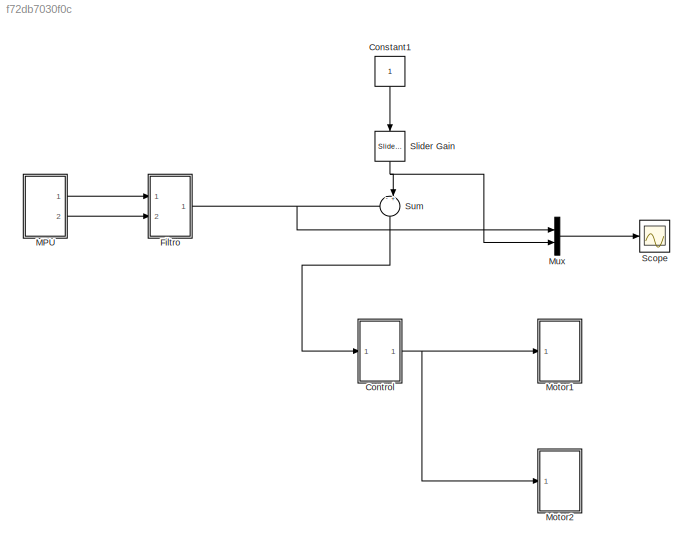
MODEL slx_f72db7030f0c
KIND model
CONFIG AbsTol = auto
CONFIG FixedStep = 0.03
CONFIG MaxStep = auto
CONFIG MinStep = auto
CONFIG RelTol = 1e-3
CONFIG SampleTimeConstraint = Unconstrained
CONFIG Solver = FixedStepDiscrete
CONFIG SolverMode = Auto
CONFIG SolverName = FixedStepDiscrete
CONFIG StartTime = 0.0
CONFIG StopTime = inf
BLOCK [Constant] Constant1
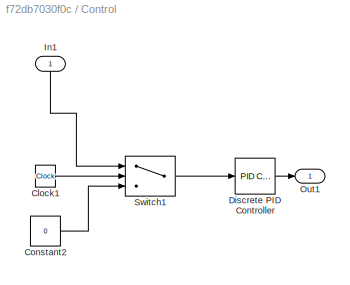
BLOCK [SubSystem] Control
  Ports = [1, 1]
  RequestExecContextInheritance = off
  Variant = off
BLOCK [Clock] Control/Clock1
BLOCK [Constant] Control/Constant2
  Value = 0
BLOCK [Reference] Control/Discrete PID Controller  REF=simulink/Continuous/PID Controller
  Ports = [1, 1]
  SourceBlock = simulink/Continuous/PID Controller
  SourceType = PID 1dof
BLOCK [Inport] Control/In1
  IconDisplay = Port number
BLOCK [Outport] Control/Out1
  IconDisplay = Port number
BLOCK [Switch] Control/Switch1
  Criteria = u2 > Threshold
  InputSameDT = off
  SaturateOnIntegerOverflow = off
  Threshold = 3
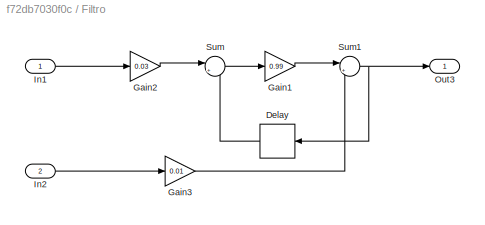
BLOCK [SubSystem] Filtro 
  Ports = [2, 1]
  RequestExecContextInheritance = off
  Variant = off
BLOCK [Delay] Filtro /Delay
  DelayLength = 1
  InitialCondition = 0
  InputPortMap = u0
  Ports = [1, 1]
BLOCK [Gain] Filtro /Gain1
  Gain = 0.99
  OutDataTypeStr = Inherit: Inherit via internal rule
  ParamDataTypeStr = Inherit: Inherit via internal rule
  SaturateOnIntegerOverflow = off
BLOCK [Gain] Filtro /Gain2
  Gain = 0.03
  OutDataTypeStr = Inherit: Inherit via internal rule
  ParamDataTypeStr = Inherit: Inherit via internal rule
  SaturateOnIntegerOverflow = off
BLOCK [Gain] Filtro /Gain3
  Gain = 0.01
  OutDataTypeStr = Inherit: Inherit via internal rule
  ParamDataTypeStr = Inherit: Inherit via internal rule
  SaturateOnIntegerOverflow = off
BLOCK [Inport] Filtro /In1
  IconDisplay = Port number
BLOCK [Inport] Filtro /In2
  IconDisplay = Port number
  Port = 2
BLOCK [Outport] Filtro /Out3
  IconDisplay = Port number
BLOCK [Sum] Filtro /Sum
  IconShape = round
  InputSameDT = off
  Inputs = |++
  OutDataTypeStr = Inherit: Inherit via internal rule
  Ports = [2, 1]
  SaturateOnIntegerOverflow = off
BLOCK [Sum] Filtro /Sum1
  IconShape = round
  InputSameDT = off
  Inputs = |++
  OutDataTypeStr = Inherit: Inherit via internal rule
  Ports = [2, 1]
  SaturateOnIntegerOverflow = off
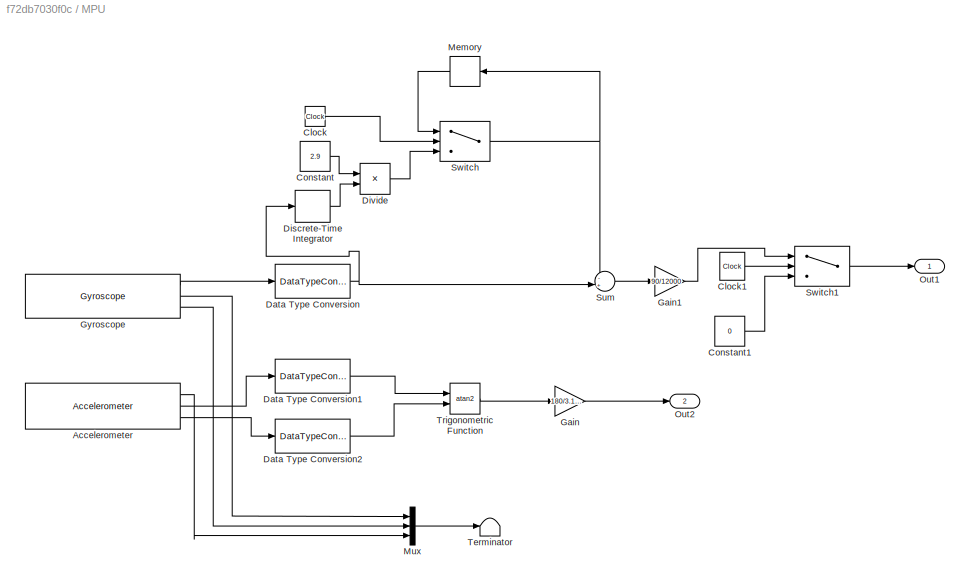
BLOCK [SubSystem] MPU 
  Ports = [0, 2]
  RequestExecContextInheritance = off
  Variant = off
BLOCK [Reference] MPU /Accelerometer  REF=RASPlib/Accelerometer
  Ports = [0, 3]
  SourceBlock = RASPlib/Accelerometer
  SourceType = soMPU6050Accel
BLOCK [Clock] MPU /Clock
BLOCK [Clock] MPU /Clock1
BLOCK [Constant] MPU /Constant
  Value = 2.9
BLOCK [Constant] MPU /Constant1
  Value = 0
BLOCK [DataTypeConversion] MPU /Data Type Conversion
  OutDataTypeStr = double
  RndMeth = Floor
  SaturateOnIntegerOverflow = off
BLOCK [DataTypeConversion] MPU /Data Type Conversion1
  OutDataTypeStr = double
  RndMeth = Floor
  SaturateOnIntegerOverflow = off
BLOCK [DataTypeConversion] MPU /Data Type Conversion2
  OutDataTypeStr = double
  RndMeth = Floor
  SaturateOnIntegerOverflow = off
BLOCK [DiscreteIntegrator] MPU /Discrete-Time Integrator
  ICPrevOutput = DiscIntNeverNeededParam
  ICPrevScaledInput = DiscIntNeverNeededParam
  InitialConditionSetting = State (most efficient)
  Ports = [1, 1]
  SampleTime = -1
BLOCK [Product] MPU /Divide
  InputSameDT = off
  Inputs = /*
  OutDataTypeStr = Inherit: Inherit via internal rule
  Ports = [2, 1]
  RndMeth = Floor
  SaturateOnIntegerOverflow = off
BLOCK [Gain] MPU /Gain
  Gain = 180/3.1416
  OutDataTypeStr = Inherit: Inherit via internal rule
  ParamDataTypeStr = Inherit: Inherit via internal rule
  SaturateOnIntegerOverflow = off
BLOCK [Gain] MPU /Gain1
  Gain = 90/12000
  OutDataTypeStr = Inherit: Inherit via internal rule
  ParamDataTypeStr = Inherit: Inherit via internal rule
  SaturateOnIntegerOverflow = off
BLOCK [Reference] MPU /Gyroscope  REF=RASPlib/Gyroscope
  Ports = [0, 3]
  SourceBlock = RASPlib/Gyroscope
  SourceType = soMPU6050Gyro
BLOCK [Memory] MPU /Memory
BLOCK [Mux] MPU /Mux
  DisplayOption = bar
  Inputs = 3
  Ports = [3, 1]
BLOCK [Outport] MPU /Out1
  IconDisplay = Port number
BLOCK [Outport] MPU /Out2
  IconDisplay = Port number
  Port = 2
BLOCK [Sum] MPU /Sum
  IconShape = round
  InputSameDT = off
  Inputs = -+|
  OutDataTypeStr = Inherit: Inherit via internal rule
  Ports = [2, 1]
  SaturateOnIntegerOverflow = off
BLOCK [Switch] MPU /Switch
  Criteria = u2 > Threshold
  InputSameDT = off
  SaturateOnIntegerOverflow = off
  Threshold = 2.9
BLOCK [Switch] MPU /Switch1
  Criteria = u2 > Threshold
  InputSameDT = off
  SaturateOnIntegerOverflow = off
  Threshold = 2.9
BLOCK [Terminator] MPU /Terminator
BLOCK [Trigonometry] MPU /Trigonometric Function
  Operator = atan2
  Ports = [2, 1]
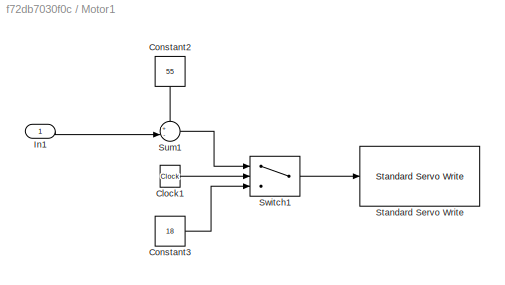
BLOCK [SubSystem] Motor1
  Ports = [1]
  RequestExecContextInheritance = off
  Variant = off
BLOCK [Clock] Motor1/Clock1
BLOCK [Constant] Motor1/Constant2
  Value = 55
BLOCK [Constant] Motor1/Constant3
  Value = 18
BLOCK [Inport] Motor1/In1
  IconDisplay = Port number
BLOCK [Reference] Motor1/Standard Servo Write  REF=arduinolib/Standard Servo Write
  Ports = [1]
  SourceBlock = arduinolib/Standard Servo Write
  SourceType = Arduino Standard Servo Write
BLOCK [Sum] Motor1/Sum1
  IconShape = round
  InputSameDT = off
  Inputs = +-|
  OutDataTypeStr = Inherit: Inherit via internal rule
  Ports = [2, 1]
  SaturateOnIntegerOverflow = off
BLOCK [Switch] Motor1/Switch1
  Criteria = u2 > Threshold
  InputSameDT = off
  SaturateOnIntegerOverflow = off
  Threshold = 3
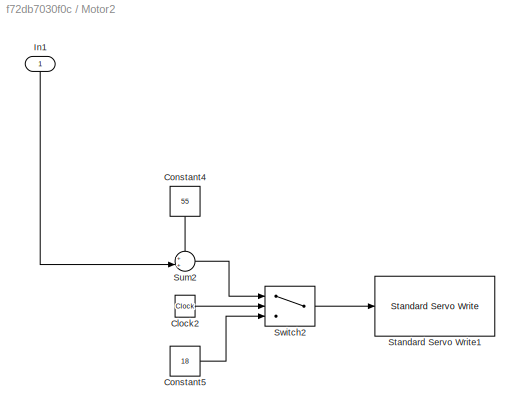
BLOCK [SubSystem] Motor2
  Ports = [1]
  RequestExecContextInheritance = off
  Variant = off
BLOCK [Clock] Motor2/Clock2
BLOCK [Constant] Motor2/Constant4
  Value = 55
BLOCK [Constant] Motor2/Constant5
  Value = 18
BLOCK [Inport] Motor2/In1
  IconDisplay = Port number
BLOCK [Reference] Motor2/Standard Servo Write1  REF=arduinolib/Standard Servo Write
  Ports = [1]
  SourceBlock = arduinolib/Standard Servo Write
  SourceType = Arduino Standard Servo Write
BLOCK [Sum] Motor2/Sum2
  IconShape = round
  InputSameDT = off
  Inputs = ++|
  OutDataTypeStr = Inherit: Inherit via internal rule
  Ports = [2, 1]
  SaturateOnIntegerOverflow = off
BLOCK [Switch] Motor2/Switch2
  Criteria = u2 > Threshold
  InputSameDT = off
  SaturateOnIntegerOverflow = off
  Threshold = 3
BLOCK [Mux] Mux
  DisplayOption = bar
  Inputs = 2
  Ports = [2, 1]
BLOCK [Scope] Scope
  Ports = [1]
  ScopeSpecificationString = Simulink.scopes.TimeScopeBlockCfg('CurrentConfiguration', extmgr.ConfigurationSet(extmgr.Configuration('Core','General UI',true),extmgr.Configuration('Core','Source UI',true),extmgr.Configuration('Sources','WiredSimulink',true,'DataLoggingLimitDataPoints',true,'DataLoggingSaveFormat','Array','DataLoggingDecimation','1','DataLoggingDecimateData',true),extmgr.Configuration('Visuals','Time Domain',tr...<+1528ch>
BLOCK [Reference] Slider Gain  REF=simulink/Math
Operations/Slider
Gain
  Ports = [1, 1]
  SourceBlock = simulink/Math\nOperations/Slider\nGain
  SourceType = Slider Gain
BLOCK [Sum] Sum
  IconShape = round
  InputSameDT = off
  Inputs = -+|
  OutDataTypeStr = Inherit: Inherit via internal rule
  Ports = [2, 1]
  SaturateOnIntegerOverflow = off
LINE Constant1:1 -> Slider Gain:1
LINE Control/Clock1:1 -> Control/Switch1:2
LINE Control/Constant2:1 -> Control/Switch1:3
LINE Control/Discrete PID Controller:1 -> Control/Out1:1
LINE Control/In1:1 -> Control/Switch1:1
LINE Control/Switch1:1 -> Control/Discrete PID Controller:1
NET Control:1 -> Motor1:1, Motor2:1
LINE Filtro /Delay:1 -> Filtro /Sum:2
LINE Filtro /Gain1:1 -> Filtro /Sum1:1
LINE Filtro /Gain2:1 -> Filtro /Sum:1
LINE Filtro /Gain3:1 -> Filtro /Sum1:2
LINE Filtro /In1:1 -> Filtro /Gain2:1
LINE Filtro /In2:1 -> Filtro /Gain3:1
NET Filtro /Sum1:1 -> Filtro /Delay:1, Filtro /Out3:1
LINE Filtro /Sum:1 -> Filtro /Gain1:1
NET Filtro :1 -> Mux:1, Sum:1
LINE MPU /Accelerometer:1 -> MPU /Mux:3
LINE MPU /Accelerometer:2 -> MPU /Data Type Conversion1:1
LINE MPU /Accelerometer:3 -> MPU /Data Type Conversion2:1
LINE MPU /Clock1:1 -> MPU /Switch1:2
LINE MPU /Clock:1 -> MPU /Switch:2
LINE MPU /Constant1:1 -> MPU /Switch1:3
LINE MPU /Constant:1 -> MPU /Divide:1
LINE MPU /Data Type Conversion1:1 -> MPU /Trigonometric Function:1
LINE MPU /Data Type Conversion2:1 -> MPU /Trigonometric Function:2
NET MPU /Data Type Conversion:1 -> MPU /Discrete-Time Integrator:1, MPU /Sum:2
LINE MPU /Discrete-Time Integrator:1 -> MPU /Divide:2
LINE MPU /Divide:1 -> MPU /Switch:3
LINE MPU /Gain1:1 -> MPU /Switch1:1
LINE MPU /Gain:1 -> MPU /Out2:1
LINE MPU /Gyroscope:1 -> MPU /Data Type Conversion:1
LINE MPU /Gyroscope:2 -> MPU /Mux:1
LINE MPU /Gyroscope:3 -> MPU /Mux:2
LINE MPU /Memory:1 -> MPU /Switch:1
LINE MPU /Mux:1 -> MPU /Terminator:1
LINE MPU /Sum:1 -> MPU /Gain1:1
LINE MPU /Switch1:1 -> MPU /Out1:1
NET MPU /Switch:1 -> MPU /Memory:1, MPU /Sum:1
LINE MPU /Trigonometric Function:1 -> MPU /Gain:1
LINE MPU :1 -> Filtro :1
LINE MPU :2 -> Filtro :2
LINE Motor1/Clock1:1 -> Motor1/Switch1:2
LINE Motor1/Constant2:1 -> Motor1/Sum1:1
LINE Motor1/Constant3:1 -> Motor1/Switch1:3
LINE Motor1/In1:1 -> Motor1/Sum1:2
LINE Motor1/Sum1:1 -> Motor1/Switch1:1
LINE Motor1/Switch1:1 -> Motor1/Standard Servo Write:1
LINE Motor2/Clock2:1 -> Motor2/Switch2:2
LINE Motor2/Constant4:1 -> Motor2/Sum2:1
LINE Motor2/Constant5:1 -> Motor2/Switch2:3
LINE Motor2/In1:1 -> Motor2/Sum2:2
LINE Motor2/Sum2:1 -> Motor2/Switch2:1
LINE Motor2/Switch2:1 -> Motor2/Standard Servo Write1:1
LINE Mux:1 -> Scope:1
NET Slider Gain:1 -> Mux:2, Sum:2
LINE Sum:1 -> Control:1
note: NET lines group one-source signal fan-out (src -> all destinations, sorted); 1:1 wires keep LINE
